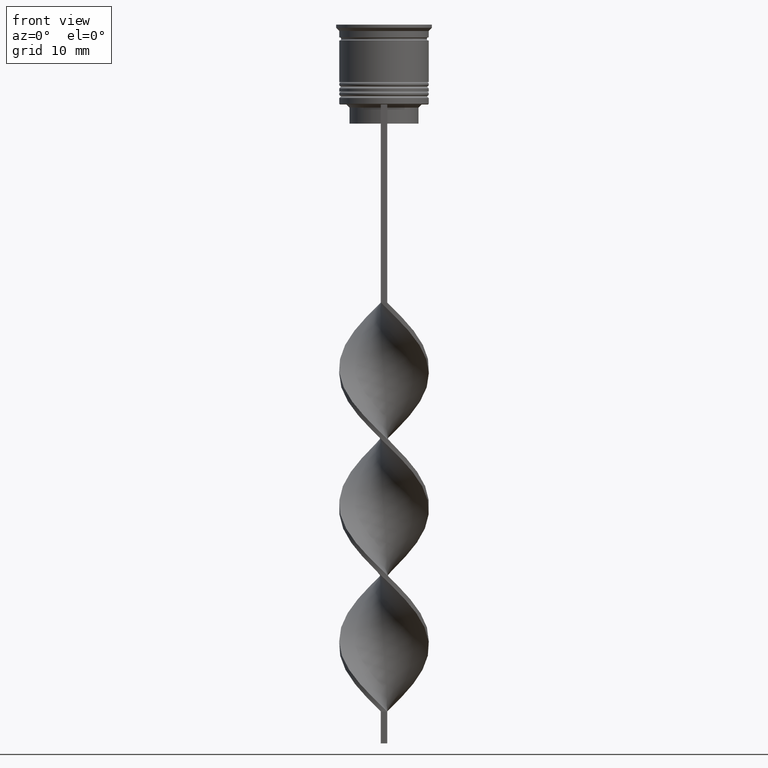
[diagram: clean part render]
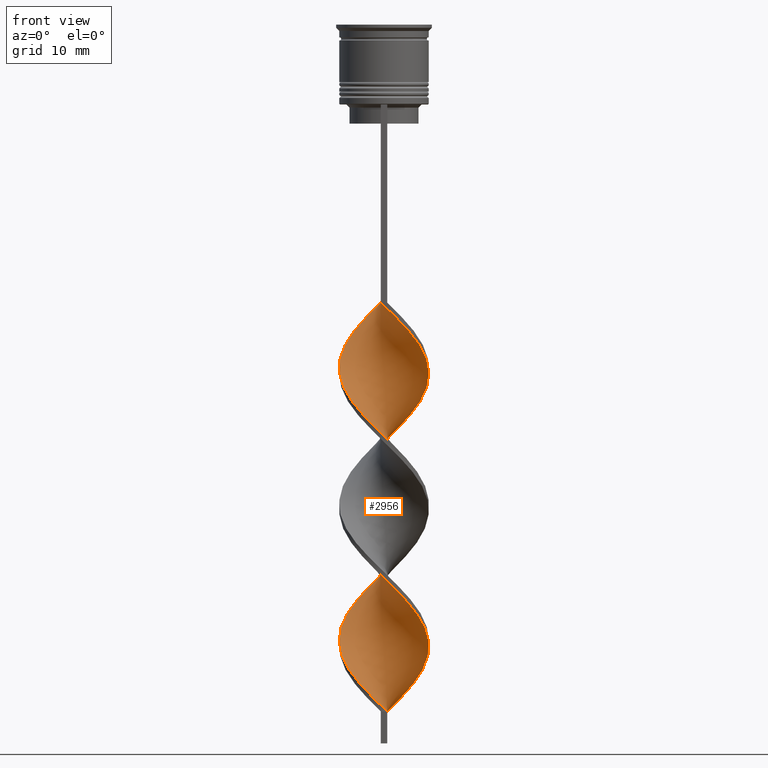
[diagram: same view with one face highlighted and labeled with its STEP entity id]
A machine part, front view. The second image highlights one B-rep face of the part: STEP entity #2956.
In plain terms, the highlighted face is a freeform B-spline surface patch.
Its self-contained STEP definition (entity closure, byte-faithful):
#6 = CARTESIAN_POINT ( 'NONE',  ( 5.476854687890014617, -4.387945160064918859, -92.73076923076922640 ) ) ;
#7 = CARTESIAN_POINT ( 'NONE',  ( 4.944061684284414504, -5.052955718088659509, -49.24358974358973740 ) ) ;
#9 = CARTESIAN_POINT ( 'NONE',  ( -6.009647691495620947, -3.722934602041179097, -57.44871794871794890 ) ) ;
#23 = CARTESIAN_POINT ( 'NONE',  ( -7.051412738059776864, 0.5036723384328427588, -75.49999999999998579 ) ) ;
#25 = CARTESIAN_POINT ( 'NONE',  ( 5.476854687890019946, 4.387945160064918859, -79.60256410256410220 ) ) ;
#40 = CARTESIAN_POINT ( 'NONE',  ( -6.367811255276639493, -2.949742330640456434, -99.29487179487178139 ) ) ;
#64 = CARTESIAN_POINT ( 'NONE',  ( 0.4999999999999996669, -2.333333333333336590, -107.5000000000000000 ) ) ;
#72 = CARTESIAN_POINT ( 'NONE',  ( -0.5000000000000000000, 7.000000000000002665, -86.16666666666667140 ) ) ;
#86 = CARTESIAN_POINT ( 'NONE',  ( -6.044919434621174759, 3.564961294171264949, -92.73076923076922640 ) ) ;
#101 = CARTESIAN_POINT ( 'NONE',  ( -4.944061684284419833, -5.052955718088660397, -59.08974358974358410 ) ) ;
#107 = CARTESIAN_POINT ( 'NONE',  ( -6.967048179568298139, -1.198476987909306679, -77.14102564102563520 ) ) ;
#118 = CARTESIAN_POINT ( 'NONE',  ( 6.722416142319174170, -2.014726087955045042, -73.03846153846153300 ) ) ;
#120 = CARTESIAN_POINT ( 'NONE',  ( 4.944061684284414504, -5.052955718088659509, -49.24358974358974450 ) ) ;
#132 = CARTESIAN_POINT ( 'NONE',  ( -5.612054764172303756, 4.298947400341753600, -49.24358974358974450 ) ) ;
#140 = EDGE_CURVE ( 'NONE', #2181, #3009, #2552, .T. ) ;
#152 = CARTESIAN_POINT ( 'NONE',  ( -0.5000000000000000000, 7.000000000000002665, -43.50000000000000000 ) ) ;
#158 = CARTESIAN_POINT ( 'NONE',  ( -6.888693778558713454, 1.340111198836291706, -74.67948717948718240 ) ) ;
#195 = CARTESIAN_POINT ( 'NONE',  ( 2.971407234896037863, 6.414580771288298067, -105.0384615384615188 ) ) ;
#198 = CARTESIAN_POINT ( 'NONE',  ( -2.029523600043935616, -6.771790116641158264, -62.37179487179486870 ) ) ;
#215 = CARTESIAN_POINT ( 'NONE',  ( 5.016113981771116670, 4.908013908077306198, -102.5769230769230660 ) ) ;
#217 = CARTESIAN_POINT ( 'NONE',  ( -2.810334191479773036, 6.430553765594351212, -68.11538461538459899 ) ) ;
#222 = CARTESIAN_POINT ( 'NONE',  ( -0.5000000000000000000, -6.999999999999997335, -86.16666666666667140 ) ) ;
#232 = CARTESIAN_POINT ( 'NONE',  ( -6.888693778558718783, -1.340111198836287487, -97.65384615384614619 ) ) ;
#235 = CARTESIAN_POINT ( 'NONE',  ( 6.967048179568297250, 1.198476987909309344, -98.47435897435896379 ) ) ;
#241 = CARTESIAN_POINT ( 'NONE',  ( 6.044919434621172094, 3.564961294171260509, -100.9358974358974308 ) ) ;
#252 = CARTESIAN_POINT ( 'NONE',  ( 4.267603233600013368, -5.571136566318104499, -91.08974358974359120 ) ) ;
#254 = CARTESIAN_POINT ( 'NONE',  ( 3.695790217132984168, 5.965830593550582428, -61.55128205128204399 ) ) ;
#257 = CARTESIAN_POINT ( 'NONE',  ( 7.051412738059776864, -0.5036723384328418707, -96.83333333333332860 ) ) ;
#270 = CARTESIAN_POINT ( 'NONE',  ( 5.016113981771116670, 4.908013908077306198, -59.91025641025640880 ) ) ;
#273 = CARTESIAN_POINT ( 'NONE',  ( -4.420173199369934025, 5.517080415812871230, -47.60256410256408799 ) ) ;
#297 = CARTESIAN_POINT ( 'NONE',  ( 0.5000000000000003331, 2.333333333333331261, -107.5000000000000000 ) ) ;
#305 = CARTESIAN_POINT ( 'NONE',  ( -4.420173199369932249, -5.517080415812865901, -82.06410256410255499 ) ) ;
#308 = CARTESIAN_POINT ( 'NONE',  ( 3.591144782915620226, 6.089317414547552154, -82.06410256410255499 ) ) ;
#326 = CARTESIAN_POINT ( 'NONE',  ( 0.4999999999999991673, -7.000000000000002665, -107.5000000000000000 ) ) ;
#327 = EDGE_CURVE ( 'NONE', #2102, #3152, #2929, .T. ) ;
#342 = CARTESIAN_POINT ( 'NONE',  ( -0.3499538825558272115, -7.060710991611133025, -106.6794871794871682 ) ) ;
#367 = CARTESIAN_POINT ( 'NONE',  ( 7.009230458814042386, -0.3474023247382383994, -74.67948717948718240 ) ) ;
#369 = CARTESIAN_POINT ( 'NONE',  ( -7.009230458814037057, -0.3474023247382289625, -76.32051282051281760 ) ) ;
#376 = CARTESIAN_POINT ( 'NONE',  ( -0.5000000000000000000, -6.999999999999997335, -43.50000000000000000 ) ) ;
#387 = CARTESIAN_POINT ( 'NONE',  ( 6.888693778558720560, 1.340111198836283490, -76.32051282051281760 ) ) ;
#392 = CARTESIAN_POINT ( 'NONE',  ( 3.591144782915614453, -6.089317414547549490, -47.60256410256409509 ) ) ;
#409 = CARTESIAN_POINT ( 'NONE',  ( -2.029523600043928955, 6.771790116641154711, -67.29487179487178139 ) ) ;
#423 = CARTESIAN_POINT ( 'NONE',  ( -2.160680558725931011, 6.676934889838587850, -45.14102564102563520 ) ) ;
#426 = CARTESIAN_POINT ( 'NONE',  ( -5.612054764172303756, -4.298947400341743830, -80.42307692307691980 ) ) ;
#432 = DIRECTION ( 'NONE',  ( 0.000000000000000000, 1.000000000000000000, 0.000000000000000000 ) ) ;
#442 = CARTESIAN_POINT ( 'NONE',  ( 2.029523600043936504, 6.771790116641158264, -83.70512820512820440 ) ) ;
#448 = CARTESIAN_POINT ( 'NONE',  ( -2.160680558725935896, -6.676934889838579856, -84.52564102564103621 ) ) ;
#466 = CARTESIAN_POINT ( 'NONE',  ( -6.725974819057657150, -2.176550059239735546, -98.47435897435896379 ) ) ;
#490 = CARTESIAN_POINT ( 'NONE',  ( 6.725974819057650933, -2.176550059239735546, -52.52564102564103621 ) ) ;
#492 = CARTESIAN_POINT ( 'NONE',  ( -7.009230458814042386, 0.3474023247382359014, -53.34615384615383959 ) ) ;
#506 = CARTESIAN_POINT ( 'NONE',  ( 6.009647691495615618, -3.722934602041177765, -93.55128205128204399 ) ) ;
#510 = CARTESIAN_POINT ( 'NONE',  ( 2.971407234896038307, 6.414580771288298067, -105.0384615384615330 ) ) ;
#522 = CARTESIAN_POINT ( 'NONE',  ( -7.009230458814042386, 0.3474023247382359014, -96.01282051282051100 ) ) ;
#526 = CARTESIAN_POINT ( 'NONE',  ( 4.267603233600013368, -5.571136566318104499, -48.42307692307691269 ) ) ;
#530 = CARTESIAN_POINT ( 'NONE',  ( -0.5000000000000000000, 7.000000000000002665, -43.50000000000000000 ) ) ;
#540 = CARTESIAN_POINT ( 'NONE',  ( -4.944061684284419833, -5.052955718088660397, -101.7564102564102484 ) ) ;
#549 = CARTESIAN_POINT ( 'NONE',  ( -6.888693778558718783, -1.340111198836287487, -54.98717948717948190 ) ) ;
#562 = CARTESIAN_POINT ( 'NONE',  ( -6.009647691495614730, 3.722934602041180430, -72.21794871794871540 ) ) ;
#572 = CARTESIAN_POINT ( 'NONE',  ( 0.4999999999999991673, -7.000000000000002665, -107.5000000000000000 ) ) ;
#582 = CARTESIAN_POINT ( 'NONE',  ( -6.888693778558713454, 1.340111198836291706, -74.67948717948718240 ) ) ;
#583 = CARTESIAN_POINT ( 'NONE',  ( 6.009647691495623612, 3.722934602041175989, -78.78205128205127039 ) ) ;
#590 = CARTESIAN_POINT ( 'NONE',  ( 0.5000000000000008882, 6.999999999999997335, -107.5000000000000000 ) ) ;
#597 = CARTESIAN_POINT ( 'NONE',  ( -4.267603233600019585, -5.571136566318106276, -102.5769230769230660 ) ) ;
#614 = CARTESIAN_POINT ( 'NONE',  ( -4.420173199369934025, 5.517080415812871230, -90.26923076923075939 ) ) ;
#630 = CARTESIAN_POINT ( 'NONE',  ( 7.051412738059782193, 0.5036723384328400943, -75.49999999999998579 ) ) ;
#645 = CARTESIAN_POINT ( 'NONE',  ( -6.009647691495613842, 3.722934602041180430, -72.21794871794871540 ) ) ;
#658 = CARTESIAN_POINT ( 'NONE',  ( -0.3499538825558272115, -7.060710991611133025, -64.01282051282051100 ) ) ;
#678 = CARTESIAN_POINT ( 'NONE',  ( 3.591144782915620226, 6.089317414547553042, -82.06410256410255499 ) ) ;
#683 = CARTESIAN_POINT ( 'NONE',  ( 2.971407234896037863, 6.414580771288298067, -62.37179487179486870 ) ) ;
#700 = CARTESIAN_POINT ( 'NONE',  ( 2.971407234896035199, -6.414580771288305172, -67.29487179487178139 ) ) ;
#704 = CARTESIAN_POINT ( 'NONE',  ( -7.051412738059777752, 0.5036723384328427588, -75.50000000000000000 ) ) ;
#714 = CARTESIAN_POINT ( 'NONE',  ( -1.349953882555824158, 6.939289008388872304, -86.98717948717948900 ) ) ;
#718 = CARTESIAN_POINT ( 'NONE',  ( 6.009647691495615618, -3.722934602041177765, -50.88461538461537970 ) ) ;
#758 = CARTESIAN_POINT ( 'NONE',  ( 6.725974819057650933, -2.176550059239735102, -95.19230769230769340 ) ) ;
#762 = CARTESIAN_POINT ( 'NONE',  ( 1.349953882555822382, -6.939289008388872304, -65.65384615384614619 ) ) ;
#778 = CARTESIAN_POINT ( 'NONE',  ( -6.044919434621174759, 3.564961294171264949, -50.06410256410256210 ) ) ;
#788 = CARTESIAN_POINT ( 'NONE',  ( -6.009647691495620947, -3.722934602041179097, -100.1153846153846132 ) ) ;
#793 = CARTESIAN_POINT ( 'NONE',  ( 3.591144782915614453, -6.089317414547549490, -90.26923076923077360 ) ) ;
#794 = EDGE_LOOP ( 'NONE', ( #3116, #840, #2944, #2949 ) ) ;
#795 = CARTESIAN_POINT ( 'NONE',  ( 6.888693778558713454, -1.340111198836289264, -53.34615384615383959 ) ) ;
#799 = CARTESIAN_POINT ( 'NONE',  ( 6.967048179568296362, 1.198476987909309566, -98.47435897435896379 ) ) ;
#821 = CARTESIAN_POINT ( 'NONE',  ( 5.612054764172301979, 4.298947400341747382, -101.7564102564102484 ) ) ;
#833 = CARTESIAN_POINT ( 'NONE',  ( -4.267603233600012480, 5.571136566318105388, -69.75641025641024839 ) ) ;
#836 = CARTESIAN_POINT ( 'NONE',  ( 4.267603233600013368, -5.571136566318104499, -91.08974358974359120 ) ) ;
#840 = ORIENTED_EDGE ( 'NONE', *, *, #3386, .T. ) ;
#851 = CARTESIAN_POINT ( 'NONE',  ( -6.044919434621172094, -3.564961294171259620, -79.60256410256410220 ) ) ;
#856 = CARTESIAN_POINT ( 'NONE',  ( 6.722416142319174170, -2.014726087955045042, -73.03846153846153300 ) ) ;
#874 = CARTESIAN_POINT ( 'NONE',  ( -2.029523600043935616, -6.771790116641158264, -105.0384615384615330 ) ) ;
#889 =( BOUNDED_CURVE ( )  B_SPLINE_CURVE ( 2, ( #3456, #941, #2101, #1295, #2890, #392, #1543, #120, #3218, #718, #1511, #1567, #2620, #2602, #1237, #958, #2078, #1840, #1254, #2943, #983, #3180, #2871, #683, #1824, #1807, #2910, #3205, #1014, #409, #1527, #2407, #2636, #2366, #3144, #645, #3479, #1769, #158, #704, #369, #107, #1220, #2924, #2329, #426, #2656, #1276, #2388, #3498, #448, #1629, #1332, #2967, #2735, #2157, #2767, #793, #252, #2984, #6, #506, #2448, #758, #2461, #2216, #2136, #235, #3534, #1389, #1351, #3238, #215, #1585, #3575, #195, #1917, #3557, #1077 ),
 .UNSPECIFIED., .F., .T. ) 
 B_SPLINE_CURVE_WITH_KNOTS ( ( 3, 2, 2, 2, 2, 2, 2, 2, 2, 2, 2, 2, 2, 2, 2, 2, 2, 2, 2, 2, 2, 2, 2, 2, 2, 2, 2, 2, 2, 2, 2, 2, 2, 2, 2, 2, 2, 2, 2, 3 ),
 ( 0.000000000000000000, 0.01923076923076923184, 0.03846153846153846367, 0.05769230769230768857, 0.07692307692307692735, 0.09615384615384615918, 0.1153846153846153771, 0.1346153846153846090, 0.1538461538461538547, 0.1730769230769230449, 0.1923076923076923184, 0.2115384615384615363, 0.2307692307692307543, 0.2500000000000000000, 0.2692307692307692180, 0.2884615384615384359, 0.3076923076923077094, 0.3269230769230769273, 0.3461538461538460898, 0.3653846153846153633, 0.3846153846153846367, 0.4038461538461539102, 0.4230769230769230727, 0.4423076923076922906, 0.4615384615384615086, 0.4807692307692307820, 0.5000000000000000000, 0.5192307692307692735, 0.5384615384615384359, 0.5576923076923077094, 0.5769230769230768718, 0.5961538461538461453, 0.6153846153846154188, 0.6346153846153845812, 0.6538461538461538547, 0.6730769230769230171, 0.6923076923076921796, 0.7115384615384615641, 0.7307692307692307265, 0.7500000000000000000 ),
 .UNSPECIFIED. ) 
 CURVE ( )  GEOMETRIC_REPRESENTATION_ITEM ( )  RATIONAL_B_SPLINE_CURVE ( ( 1.000000000000000000, 0.9927088740980539727, 1.000000000000000000, 0.9927088740980539727, 1.000000000000000000, 0.9927088740980539727, 1.000000000000000000, 0.9927088740980539727, 1.000000000000000000, 0.9927088740980539727, 1.000000000000000000, 0.9927088740980539727, 1.000000000000000000, 0.9927088740980539727, 1.000000000000000000, 0.9927088740980539727, 1.000000000000000000, 0.9927088740980539727, 1.000000000000000000, 0.9927088740980539727, 1.000000000000000000, 0.9927088740980539727, 1.000000000000000000, 0.9927088740980539727, 1.000000000000000000, 0.9927088740980539727, 1.000000000000000000, 0.9927088740980539727, 1.000000000000000000, 0.9927088740980539727, 1.000000000000000000, 0.9927088740980539727, 1.000000000000000000, 0.9927088740980539727, 1.000000000000000000, 0.9927088740980539727, 1.000000000000000000, 0.9927088740980539727, 1.000000000000000000, 0.9927088740980539727, 1.000000000000000000, 0.9927088740980539727, 1.000000000000000000, 0.9927088740980539727, 1.000000000000000000, 0.9927088740980539727, 1.000000000000000000, 0.9927088740980539727, 1.000000000000000000, 0.9927088740980539727, 1.000000000000000000, 0.9927088740980539727, 1.000000000000000000, 0.9927088740980539727, 1.000000000000000000, 0.9927088740980539727, 1.000000000000000000, 0.9927088740980539727, 1.000000000000000000, 0.9927088740980539727, 1.000000000000000000, 0.9927088740980539727, 1.000000000000000000, 0.9927088740980539727, 1.000000000000000000, 0.9927088740980539727, 1.000000000000000000, 0.9927088740980539727, 1.000000000000000000, 0.9927088740980539727, 1.000000000000000000, 0.9927088740980539727, 1.000000000000000000, 0.9927088740980539727, 1.000000000000000000, 0.9927088740980539727, 1.000000000000000000, 0.9927088740980539727, 1.000000000000000000 ) ) 
 REPRESENTATION_ITEM ( '' )  );
#893 = CARTESIAN_POINT ( 'NONE',  ( -7.051412738059782193, -0.5036723384328409825, -96.83333333333332860 ) ) ;
#924 = CARTESIAN_POINT ( 'NONE',  ( 6.477784105070043985, -2.830975188000779408, -72.21794871794871540 ) ) ;
#941 = CARTESIAN_POINT ( 'NONE',  ( 0.3499538825558234922, -7.060710991611127696, -44.32051282051282470 ) ) ;
#954 = CARTESIAN_POINT ( 'NONE',  ( 4.420173199369933137, -5.517080415812873007, -68.93589743589743080 ) ) ;
#958 = CARTESIAN_POINT ( 'NONE',  ( 6.967048179568297250, 1.198476987909309344, -55.80769230769230660 ) ) ;
#979 = CARTESIAN_POINT ( 'NONE',  ( -3.591144782915619338, -6.089317414547553042, -60.73076923076922640 ) ) ;
#983 = CARTESIAN_POINT ( 'NONE',  ( 5.016113981771116670, 4.908013908077306198, -59.91025641025640880 ) ) ;
#996 = CARTESIAN_POINT ( 'NONE',  ( 2.810334191479780586, 6.430553765594353877, -82.88461538461537259 ) ) ;
#1009 = CARTESIAN_POINT ( 'NONE',  ( -2.029523600043935616, -6.771790116641158264, -105.0384615384615188 ) ) ;
#1014 = CARTESIAN_POINT ( 'NONE',  ( -1.189738741299875224, 6.916250554126141203, -66.47435897435896379 ) ) ;
#1039 = CARTESIAN_POINT ( 'NONE',  ( -3.591144782915613565, 6.089317414547550378, -68.93589743589743080 ) ) ;
#1043 = CARTESIAN_POINT ( 'NONE',  ( 6.367811255276632387, -2.949742330640456878, -94.37179487179486159 ) ) ;
#1054 = CARTESIAN_POINT ( 'NONE',  ( -4.420173199369934025, 5.517080415812872118, -90.26923076923077360 ) ) ;
#1064 = CARTESIAN_POINT ( 'NONE',  ( 5.612054764172302868, -4.298947400341755376, -70.57692307692306599 ) ) ;
#1074 = CARTESIAN_POINT ( 'NONE',  ( -6.722416142319174170, 2.014726087955044598, -94.37179487179486159 ) ) ;
#1077 = CARTESIAN_POINT ( 'NONE',  ( 0.5000000000000008882, 6.999999999999997335, -107.5000000000000000 ) ) ;
#1079 = CARTESIAN_POINT ( 'NONE',  ( 6.967048179568296362, 1.198476987909309566, -55.80769230769230660 ) ) ;
#1082 = CARTESIAN_POINT ( 'NONE',  ( 2.810334191479773480, -6.430553765594351212, -89.44871794871794179 ) ) ;
#1103 = CARTESIAN_POINT ( 'NONE',  ( -6.725974819057657150, -2.176550059239735990, -55.80769230769230660 ) ) ;
#1125 = CARTESIAN_POINT ( 'NONE',  ( -4.944061684284419833, -5.052955718088660397, -59.08974358974359120 ) ) ;
#1137 = CARTESIAN_POINT ( 'NONE',  ( -5.612054764172303756, -4.298947400341743830, -80.42307692307691980 ) ) ;
#1139 = CARTESIAN_POINT ( 'NONE',  ( -2.160680558725931011, 6.676934889838587850, -87.80769230769230660 ) ) ;
#1156 = CARTESIAN_POINT ( 'NONE',  ( 7.009230458814042386, -0.3474023247382383994, -74.67948717948718240 ) ) ;
#1173 = CARTESIAN_POINT ( 'NONE',  ( 2.029523600043936060, 6.771790116641158264, -83.70512820512820440 ) ) ;
#1188 = CARTESIAN_POINT ( 'NONE',  ( -3.695790217132985944, 5.965830593550586869, -89.44871794871794179 ) ) ;
#1201 = CARTESIAN_POINT ( 'NONE',  ( -2.971407234896037863, 6.414580771288304284, -45.96153846153845990 ) ) ;
#1217 = CARTESIAN_POINT ( 'NONE',  ( -2.810334191479776589, -6.430553765594355653, -61.55128205128204399 ) ) ;
#1220 = CARTESIAN_POINT ( 'NONE',  ( -6.722416142319169730, -2.014726087955041045, -77.96153846153845279 ) ) ;
#1234 = CARTESIAN_POINT ( 'NONE',  ( 1.189738741299885438, 6.916250554126144756, -84.52564102564103621 ) ) ;
#1237 = CARTESIAN_POINT ( 'NONE',  ( 7.009230458814037057, 0.3474023247382328483, -54.98717948717948190 ) ) ;
#1252 = CARTESIAN_POINT ( 'NONE',  ( -6.477784105070046650, 2.830975188000775411, -50.88461538461537970 ) ) ;
#1254 = CARTESIAN_POINT ( 'NONE',  ( 6.044919434621172094, 3.564961294171260509, -58.26923076923076650 ) ) ;
#1269 = CARTESIAN_POINT ( 'NONE',  ( -6.888693778558718783, -1.340111198836287487, -54.98717948717948190 ) ) ;
#1276 = CARTESIAN_POINT ( 'NONE',  ( -4.420173199369932249, -5.517080415812866789, -82.06410256410255499 ) ) ;
#1295 = CARTESIAN_POINT ( 'NONE',  ( 2.029523600043931175, -6.771790116641153823, -45.96153846153845990 ) ) ;
#1311 = CARTESIAN_POINT ( 'NONE',  ( -5.612054764172303756, 4.298947400341753600, -91.91025641025643722 ) ) ;
#1318 = CARTESIAN_POINT ( 'NONE',  ( -0.3499538825558272115, -7.060710991611133025, -64.01282051282051100 ) ) ;
#1323 = VECTOR ( 'NONE', #432, 1000.000000000000000 ) ;
#1328 = CARTESIAN_POINT ( 'NONE',  ( -6.477784105070046650, 2.830975188000775411, -93.55128205128204399 ) ) ;
#1332 = CARTESIAN_POINT ( 'NONE',  ( -0.5000000000000000000, -6.999999999999997335, -86.16666666666667140 ) ) ;
#1339 = CARTESIAN_POINT ( 'NONE',  ( 3.695790217132985500, -5.965830593550586869, -68.11538461538459899 ) ) ;
#1348 = CARTESIAN_POINT ( 'NONE',  ( -6.367811255276639493, -2.949742330640456434, -99.29487179487178139 ) ) ;
#1351 = CARTESIAN_POINT ( 'NONE',  ( 6.044919434621172094, 3.564961294171260509, -100.9358974358974308 ) ) ;
#1357 = CARTESIAN_POINT ( 'NONE',  ( -3.591144782915619338, -6.089317414547552154, -60.73076923076922640 ) ) ;
#1372 = CARTESIAN_POINT ( 'NONE',  ( 4.420173199369931361, 5.517080415812865901, -103.3974358974358694 ) ) ;
#1389 = CARTESIAN_POINT ( 'NONE',  ( 6.477784105070041321, 2.830975188000771858, -100.1153846153846132 ) ) ;
#1391 = CARTESIAN_POINT ( 'NONE',  ( 3.591144782915614453, -6.089317414547549490, -47.60256410256408799 ) ) ;
#1395 = CARTESIAN_POINT ( 'NONE',  ( 5.016113981771116670, 4.908013908077306198, -102.5769230769230660 ) ) ;
#1413 = CARTESIAN_POINT ( 'NONE',  ( -4.944061684284419833, -5.052955718088660397, -101.7564102564102484 ) ) ;
#1428 = CARTESIAN_POINT ( 'NONE',  ( -5.016113981771117558, 4.908013908077312415, -91.08974358974359120 ) ) ;
#1441 = CARTESIAN_POINT ( 'NONE',  ( -2.971407234896037863, 6.414580771288304284, -88.62820512820513841 ) ) ;
#1459 = CARTESIAN_POINT ( 'NONE',  ( -6.967048179568302579, 1.198476987909311342, -95.19230769230769340 ) ) ;
#1474 = CARTESIAN_POINT ( 'NONE',  ( 0.4999999999999991673, -7.000000000000002665, -107.5000000000000000 ) ) ;
#1485 = CARTESIAN_POINT ( 'NONE',  ( -6.009647691495620947, -3.722934602041179097, -57.44871794871794890 ) ) ;
#1507 = CARTESIAN_POINT ( 'NONE',  ( 5.476854687890019946, 4.387945160064918859, -79.60256410256410220 ) ) ;
#1511 = CARTESIAN_POINT ( 'NONE',  ( 6.367811255276632387, -2.949742330640456878, -51.70512820512820440 ) ) ;
#1527 = CARTESIAN_POINT ( 'NONE',  ( -2.810334191479773036, 6.430553765594351212, -68.11538461538459899 ) ) ;
#1540 = CARTESIAN_POINT ( 'NONE',  ( -7.009230458814042386, 0.3474023247382359014, -53.34615384615383959 ) ) ;
#1543 = CARTESIAN_POINT ( 'NONE',  ( 4.267603233600013368, -5.571136566318104499, -48.42307692307691269 ) ) ;
#1562 = CARTESIAN_POINT ( 'NONE',  ( -0.5000000000000000000, -6.999999999999997335, -43.50000000000000000 ) ) ;
#1567 = CARTESIAN_POINT ( 'NONE',  ( 6.725974819057650933, -2.176550059239735102, -52.52564102564102910 ) ) ;
#1585 = CARTESIAN_POINT ( 'NONE',  ( 4.420173199369931361, 5.517080415812866789, -103.3974358974358836 ) ) ;
#1589 = CARTESIAN_POINT ( 'NONE',  ( 5.476854687890014617, -4.387945160064918859, -92.73076923076922640 ) ) ;
#1611 = CARTESIAN_POINT ( 'NONE',  ( 2.160680558725928790, -6.676934889838588738, -66.47435897435896379 ) ) ;
#1629 = CARTESIAN_POINT ( 'NONE',  ( -1.349953882555827489, -6.939289008388866975, -85.34615384615385381 ) ) ;
#1636 = CARTESIAN_POINT ( 'NONE',  ( -7.051412738059782193, -0.5036723384328409825, -54.16666666666665719 ) ) ;
#1652 = CARTESIAN_POINT ( 'NONE',  ( 2.160680558725932343, 6.676934889838581633, -63.19230769230768630 ) ) ;
#1655 = CARTESIAN_POINT ( 'NONE',  ( -1.349953882555824158, 6.939289008388872304, -44.32051282051282470 ) ) ;
#1668 = CARTESIAN_POINT ( 'NONE',  ( 7.051412738059776864, -0.5036723384328418707, -54.16666666666665719 ) ) ;
#1670 = CARTESIAN_POINT ( 'NONE',  ( 1.189738741299877445, -6.916250554126140315, -87.80769230769230660 ) ) ;
#1685 = CARTESIAN_POINT ( 'NONE',  ( 5.612054764172301979, 4.298947400341747382, -59.08974358974359120 ) ) ;
#1687 = CARTESIAN_POINT ( 'NONE',  ( -2.810334191479776589, -6.430553765594355653, -104.2179487179487012 ) ) ;
#1705 = CARTESIAN_POINT ( 'NONE',  ( -6.477784105070042209, -2.830975188000768306, -78.78205128205127039 ) ) ;
#1707 = CARTESIAN_POINT ( 'NONE',  ( 4.944061684284423386, 5.052955718088656845, -80.42307692307691980 ) ) ;
#1755 = CARTESIAN_POINT ( 'NONE',  ( 1.189738741299885438, 6.916250554126144756, -84.52564102564103621 ) ) ;
#1767 = CARTESIAN_POINT ( 'NONE',  ( -5.016113981771117558, 4.908013908077312415, -48.42307692307691269 ) ) ;
#1769 = CARTESIAN_POINT ( 'NONE',  ( -6.725974819057651821, 2.176550059239734658, -73.85897435897436480 ) ) ;
#1782 = CARTESIAN_POINT ( 'NONE',  ( -6.367811255276639493, -2.949742330640456434, -56.62820512820513130 ) ) ;
#1804 = CARTESIAN_POINT ( 'NONE',  ( -3.695790217132985944, 5.965830593550586869, -46.78205128205127750 ) ) ;
#1807 = CARTESIAN_POINT ( 'NONE',  ( 1.349953882555826601, 6.939289008388866975, -64.01282051282051100 ) ) ;
#1820 = CARTESIAN_POINT ( 'NONE',  ( 5.612054764172302868, -4.298947400341755376, -70.57692307692306599 ) ) ;
#1824 = CARTESIAN_POINT ( 'NONE',  ( 2.160680558725932343, 6.676934889838581633, -63.19230769230768630 ) ) ;
#1837 = CARTESIAN_POINT ( 'NONE',  ( 0.4999999999999991673, -7.000000000000002665, -64.83333333333332860 ) ) ;
#1840 = CARTESIAN_POINT ( 'NONE',  ( 6.477784105070041321, 2.830975188000771858, -57.44871794871794890 ) ) ;
#1857 = CARTESIAN_POINT ( 'NONE',  ( -4.267603233600019585, -5.571136566318106276, -102.5769230769230660 ) ) ;
#1878 = CARTESIAN_POINT ( 'NONE',  ( 6.722416142319168841, 2.014726087955040157, -56.62820512820513130 ) ) ;
#1881 = CARTESIAN_POINT ( 'NONE',  ( -6.967048179568302579, 1.198476987909311342, -52.52564102564103621 ) ) ;
#1897 = CARTESIAN_POINT ( 'NONE',  ( 1.189738741299877445, -6.916250554126140315, -45.14102564102563520 ) ) ;
#1899 = CARTESIAN_POINT ( 'NONE',  ( -1.349953882555827489, -6.939289008388866975, -85.34615384615383959 ) ) ;
#1917 = CARTESIAN_POINT ( 'NONE',  ( 2.160680558725932343, 6.676934889838581633, -105.8589743589743506 ) ) ;
#1920 = CARTESIAN_POINT ( 'NONE',  ( 4.420173199369931361, 5.517080415812865901, -60.73076923076922640 ) ) ;
#1923 = CARTESIAN_POINT ( 'NONE',  ( 0.3499538825558234922, -7.060710991611127696, -86.98717948717948900 ) ) ;
#1941 = CARTESIAN_POINT ( 'NONE',  ( -5.016113981771117558, 4.908013908077312415, -48.42307692307691269 ) ) ;
#1955 = CARTESIAN_POINT ( 'NONE',  ( 6.477784105070041321, 2.830975188000771858, -57.44871794871794890 ) ) ;
#1959 = CARTESIAN_POINT ( 'NONE',  ( -3.695790217132985944, 5.965830593550586869, -46.78205128205127750 ) ) ;
#1975 = CARTESIAN_POINT ( 'NONE',  ( -7.009230458814037057, -0.3474023247382289625, -76.32051282051281760 ) ) ;
#1977 = CARTESIAN_POINT ( 'NONE',  ( -6.888693778558718783, -1.340111198836287487, -97.65384615384614619 ) ) ;
#2010 = CARTESIAN_POINT ( 'NONE',  ( 0.3499538825558280997, 7.060710991611133025, -85.34615384615383959 ) ) ;
#2028 = CARTESIAN_POINT ( 'NONE',  ( 2.810334191479780586, 6.430553765594353877, -82.88461538461537259 ) ) ;
#2041 = CARTESIAN_POINT ( 'NONE',  ( -7.051412738059782193, -0.5036723384328409825, -54.16666666666666430 ) ) ;
#2056 = CARTESIAN_POINT ( 'NONE',  ( 5.016113981771116670, -4.908013908077313303, -69.75641025641024839 ) ) ;
#2073 = CARTESIAN_POINT ( 'NONE',  ( -2.971407234896037863, 6.414580771288304284, -88.62820512820512420 ) ) ;
#2078 = CARTESIAN_POINT ( 'NONE',  ( 6.722416142319168841, 2.014726087955040157, -56.62820512820513130 ) ) ;
#2098 = CARTESIAN_POINT ( 'NONE',  ( -4.420173199369934025, 5.517080415812872118, -47.60256410256409509 ) ) ;
#2101 = CARTESIAN_POINT ( 'NONE',  ( 1.189738741299877445, -6.916250554126140315, -45.14102564102563520 ) ) ;
#2102 = VERTEX_POINT ( 'NONE', #1562 ) ;
#2117 = CARTESIAN_POINT ( 'NONE',  ( -1.189738741299881442, -6.916250554126144756, -63.19230769230768630 ) ) ;
#2132 = CARTESIAN_POINT ( 'NONE',  ( -2.810334191479776589, -6.430553765594355653, -104.2179487179487012 ) ) ;
#2136 = CARTESIAN_POINT ( 'NONE',  ( 7.009230458814037057, 0.3474023247382328483, -97.65384615384614619 ) ) ;
#2157 = CARTESIAN_POINT ( 'NONE',  ( 2.029523600043931175, -6.771790116641153823, -88.62820512820512420 ) ) ;
#2159 = CARTESIAN_POINT ( 'NONE',  ( -4.944061684284411839, 5.052955718088659509, -70.57692307692306599 ) ) ;
#2163 = CARTESIAN_POINT ( 'NONE',  ( -2.160680558725931011, 6.676934889838587850, -45.14102564102563520 ) ) ;
#2174 =( BOUNDED_CURVE ( )  B_SPLINE_CURVE ( 2, ( #152, #2886, #423, #1201, #1804, #2098, #1767, #132, #2309, #1252, #3473, #3174, #1540, #2041, #1269, #2652, #1782, #1485, #3417, #101, #2359, #979, #1217, #3142, #2117, #658, #1837, #3202, #3435, #700, #2325, #954, #2056, #1820, #2937, #924, #118, #2868, #367, #3153, #387, #2923, #2385, #2907, #1507, #2617, #3495, #678, #996, #442, #1234, #3215, #2342, #714, #3453, #2073, #2211, #1054, #2981, #1311, #2997, #1328, #1074, #2709, #522, #3512, #232, #466, #1348, #788, #3529, #540, #1857, #3317, #2132, #1009, #2404, #2444, #2191 ),
 .UNSPECIFIED., .F., .T. ) 
 B_SPLINE_CURVE_WITH_KNOTS ( ( 3, 2, 2, 2, 2, 2, 2, 2, 2, 2, 2, 2, 2, 2, 2, 2, 2, 2, 2, 2, 2, 2, 2, 2, 2, 2, 2, 2, 2, 2, 2, 2, 2, 2, 2, 2, 2, 2, 2, 3 ),
 ( 0.000000000000000000, 0.01923076923076923184, 0.03846153846153846367, 0.05769230769230768857, 0.07692307692307692735, 0.09615384615384615918, 0.1153846153846153771, 0.1346153846153846090, 0.1538461538461538547, 0.1730769230769230449, 0.1923076923076923184, 0.2115384615384615363, 0.2307692307692307543, 0.2500000000000000000, 0.2692307692307692180, 0.2884615384615384359, 0.3076923076923077094, 0.3269230769230769273, 0.3461538461538460898, 0.3653846153846153633, 0.3846153846153846367, 0.4038461538461539102, 0.4230769230769230727, 0.4423076923076922906, 0.4615384615384615086, 0.4807692307692307820, 0.5000000000000000000, 0.5192307692307692735, 0.5384615384615384359, 0.5576923076923077094, 0.5769230769230768718, 0.5961538461538461453, 0.6153846153846154188, 0.6346153846153845812, 0.6538461538461538547, 0.6730769230769230171, 0.6923076923076921796, 0.7115384615384615641, 0.7307692307692307265, 0.7500000000000000000 ),
 .UNSPECIFIED. ) 
 CURVE ( )  GEOMETRIC_REPRESENTATION_ITEM ( )  RATIONAL_B_SPLINE_CURVE ( ( 1.000000000000000000, 0.9927088740980539727, 1.000000000000000000, 0.9927088740980539727, 1.000000000000000000, 0.9927088740980539727, 1.000000000000000000, 0.9927088740980539727, 1.000000000000000000, 0.9927088740980539727, 1.000000000000000000, 0.9927088740980539727, 1.000000000000000000, 0.9927088740980539727, 1.000000000000000000, 0.9927088740980539727, 1.000000000000000000, 0.9927088740980539727, 1.000000000000000000, 0.9927088740980539727, 1.000000000000000000, 0.9927088740980539727, 1.000000000000000000, 0.9927088740980539727, 1.000000000000000000, 0.9927088740980539727, 1.000000000000000000, 0.9927088740980539727, 1.000000000000000000, 0.9927088740980539727, 1.000000000000000000, 0.9927088740980539727, 1.000000000000000000, 0.9927088740980539727, 1.000000000000000000, 0.9927088740980539727, 1.000000000000000000, 0.9927088740980539727, 1.000000000000000000, 0.9927088740980539727, 1.000000000000000000, 0.9927088740980539727, 1.000000000000000000, 0.9927088740980539727, 1.000000000000000000, 0.9927088740980539727, 1.000000000000000000, 0.9927088740980539727, 1.000000000000000000, 0.9927088740980539727, 1.000000000000000000, 0.9927088740980539727, 1.000000000000000000, 0.9927088740980539727, 1.000000000000000000, 0.9927088740980539727, 1.000000000000000000, 0.9927088740980539727, 1.000000000000000000, 0.9927088740980539727, 1.000000000000000000, 0.9927088740980539727, 1.000000000000000000, 0.9927088740980539727, 1.000000000000000000, 0.9927088740980539727, 1.000000000000000000, 0.9927088740980539727, 1.000000000000000000, 0.9927088740980539727, 1.000000000000000000, 0.9927088740980539727, 1.000000000000000000, 0.9927088740980539727, 1.000000000000000000, 0.9927088740980539727, 1.000000000000000000, 0.9927088740980539727, 1.000000000000000000 ) ) 
 REPRESENTATION_ITEM ( '' )  );
#2177 = FACE_OUTER_BOUND ( 'NONE', #794, .T. ) ;
#2180 = CARTESIAN_POINT ( 'NONE',  ( 6.044919434621174759, -3.564961294171264949, -71.39743589743588359 ) ) ;
#2181 = VERTEX_POINT ( 'NONE', #2278 ) ;
#2191 = CARTESIAN_POINT ( 'NONE',  ( 0.4999999999999991673, -7.000000000000002665, -107.5000000000000000 ) ) ;
#2194 = CARTESIAN_POINT ( 'NONE',  ( 6.044919434621172094, 3.564961294171260509, -58.26923076923076650 ) ) ;
#2198 = CARTESIAN_POINT ( 'NONE',  ( 6.725974819057650933, -2.176550059239735546, -95.19230769230769340 ) ) ;
#2211 = CARTESIAN_POINT ( 'NONE',  ( -3.695790217132985944, 5.965830593550586869, -89.44871794871794179 ) ) ;
#2216 = CARTESIAN_POINT ( 'NONE',  ( 7.051412738059777752, -0.5036723384328418707, -96.83333333333332860 ) ) ;
#2219 = CARTESIAN_POINT ( 'NONE',  ( 6.367811255276632387, -2.949742330640456878, -51.70512820512820440 ) ) ;
#2220 = CARTESIAN_POINT ( 'NONE',  ( 1.349953882555826601, 6.939289008388866975, -106.6794871794871682 ) ) ;
#2236 = CARTESIAN_POINT ( 'NONE',  ( 0.5000000000000008882, 6.999999999999997335, -64.83333333333332860 ) ) ;
#2237 = CARTESIAN_POINT ( 'NONE',  ( -4.267603233600019585, -5.571136566318106276, -59.91025641025640880 ) ) ;
#2248 = CARTESIAN_POINT ( 'NONE',  ( -2.971407234896039196, -6.414580771288298067, -83.70512820512820440 ) ) ;
#2251 = CARTESIAN_POINT ( 'NONE',  ( -3.591144782915619338, -6.089317414547552154, -103.3974358974358694 ) ) ;
#2270 = CARTESIAN_POINT ( 'NONE',  ( 4.267603233600020474, 5.571136566318105388, -81.24358974358973740 ) ) ;
#2278 = CARTESIAN_POINT ( 'NONE',  ( 0.5000000000000008882, 6.999999999999997335, -107.5000000000000000 ) ) ;
#2309 = CARTESIAN_POINT ( 'NONE',  ( -6.044919434621174759, 3.564961294171264949, -50.06410256410256210 ) ) ;
#2314 = CARTESIAN_POINT ( 'NONE',  ( -6.722416142319174170, 2.014726087955044598, -94.37179487179486159 ) ) ;
#2325 = CARTESIAN_POINT ( 'NONE',  ( 3.695790217132985500, -5.965830593550586869, -68.11538461538459899 ) ) ;
#2329 = CARTESIAN_POINT ( 'NONE',  ( -6.044919434621172094, -3.564961294171259620, -79.60256410256410220 ) ) ;
#2342 = CARTESIAN_POINT ( 'NONE',  ( -0.5000000000000000000, 7.000000000000002665, -86.16666666666667140 ) ) ;
#2359 = CARTESIAN_POINT ( 'NONE',  ( -4.267603233600019585, -5.571136566318106276, -59.91025641025640880 ) ) ;
#2366 = CARTESIAN_POINT ( 'NONE',  ( -4.944061684284411839, 5.052955718088659509, -70.57692307692306599 ) ) ;
#2385 = CARTESIAN_POINT ( 'NONE',  ( 6.367811255276638605, 2.949742330640457322, -77.96153846153845279 ) ) ;
#2388 = CARTESIAN_POINT ( 'NONE',  ( -3.695790217132987721, -5.965830593550580652, -82.88461538461537259 ) ) ;
#2403 =( BOUNDED_SURFACE ( )  B_SPLINE_SURFACE ( 1, 2, ( 
 ( #2449, #2986, #1897, #2463, #3576, #1391, #526, #7, #2480, #3048, #2219, #490, #795, #1668, #3322, #1079, #1878, #1955, #2194, #1685, #270, #1920, #254, #3031, #1652, #2754, #2236, #2787, #2715, #3337, #217, #1039, #833, #2159, #3064, #562, #3537, #3262, #582, #23, #1975, #3352, #2516, #1705, #851, #1137, #2806, #305, #3084, #2248, #3580, #1899, #222, #1923, #1670, #3066, #1082, #2988, #836, #3303, #1589, #3284, #1043, #2198, #3265, #257, #3008, #799, #2757, #2772, #241, #821, #1395, #1372, #3034, #510, #3323, #2220, #3543 ),
 ( #530, #1655, #2163, #2482, #1959, #273, #1941, #3050, #778, #2700, #3596, #1881, #492, #1636, #549, #1103, #2506, #9, #2740, #1125, #2237, #1357, #3339, #198, #2465, #1318, #2432, #762, #1611, #2721, #1339, #2453, #3563, #1064, #2180, #2808, #856, #2569, #1156, #630, #3133, #3085, #2582, #583, #25, #1707, #2270, #308, #2028, #1173, #1755, #2010, #72, #2841, #1139, #1441, #1188, #614, #1428, #2519, #86, #3373, #2314, #1459, #2535, #893, #1977, #2554, #40, #3113, #3422, #1413, #597, #2251, #1687, #874, #2790, #342, #326 ) ),
 .UNSPECIFIED., .F., .F., .F. ) 
 B_SPLINE_SURFACE_WITH_KNOTS ( ( 2, 2 ),
 ( 3, 2, 2, 2, 2, 2, 2, 2, 2, 2, 2, 2, 2, 2, 2, 2, 2, 2, 2, 2, 2, 2, 2, 2, 2, 2, 2, 2, 2, 2, 2, 2, 2, 2, 2, 2, 2, 2, 2, 3 ),
 ( 0.000000000000000000, 1.000000000000000000 ),
 ( 0.000000000000000000, 0.01923076923076923184, 0.03846153846153846367, 0.05769230769230769551, 0.07692307692307692735, 0.09615384615384615918, 0.1153846153846153910, 0.1346153846153846090, 0.1538461538461538547, 0.1730769230769230727, 0.1923076923076923184, 0.2115384615384615363, 0.2307692307692307820, 0.2500000000000000000, 0.2692307692307692180, 0.2884615384615384359, 0.3076923076923077094, 0.3269230769230769273, 0.3461538461538461453, 0.3653846153846153633, 0.3846153846153846367, 0.4038461538461538547, 0.4230769230769230727, 0.4423076923076922906, 0.4615384615384615641, 0.4807692307692307820, 0.5000000000000000000, 0.5192307692307692735, 0.5384615384615384359, 0.5576923076923077094, 0.5769230769230768718, 0.5961538461538461453, 0.6153846153846154188, 0.6346153846153845812, 0.6538461538461538547, 0.6730769230769231282, 0.6923076923076922906, 0.7115384615384615641, 0.7307692307692307265, 0.7500000000000000000 ),
 .UNSPECIFIED. ) 
 GEOMETRIC_REPRESENTATION_ITEM ( )  RATIONAL_B_SPLINE_SURFACE ( (
 ( 1.000000000000000000, 0.9927088740980539727, 1.000000000000000000, 0.9927088740980539727, 1.000000000000000000, 0.9927088740980539727, 1.000000000000000000, 0.9927088740980539727, 1.000000000000000000, 0.9927088740980539727, 1.000000000000000000, 0.9927088740980539727, 1.000000000000000000, 0.9927088740980539727, 1.000000000000000000, 0.9927088740980539727, 1.000000000000000000, 0.9927088740980539727, 1.000000000000000000, 0.9927088740980539727, 1.000000000000000000, 0.9927088740980539727, 1.000000000000000000, 0.9927088740980539727, 1.000000000000000000, 0.9927088740980539727, 1.000000000000000000, 0.9927088740980539727, 1.000000000000000000, 0.9927088740980539727, 1.000000000000000000, 0.9927088740980539727, 1.000000000000000000, 0.9927088740980539727, 1.000000000000000000, 0.9927088740980539727, 1.000000000000000000, 0.9927088740980539727, 1.000000000000000000, 0.9927088740980539727, 1.000000000000000000, 0.9927088740980539727, 1.000000000000000000, 0.9927088740980539727, 1.000000000000000000, 0.9927088740980539727, 1.000000000000000000, 0.9927088740980539727, 1.000000000000000000, 0.9927088740980539727, 1.000000000000000000, 0.9927088740980539727, 1.000000000000000000, 0.9927088740980539727, 1.000000000000000000, 0.9927088740980539727, 1.000000000000000000, 0.9927088740980539727, 1.000000000000000000, 0.9927088740980539727, 1.000000000000000000, 0.9927088740980539727, 1.000000000000000000, 0.9927088740980539727, 1.000000000000000000, 0.9927088740980539727, 1.000000000000000000, 0.9927088740980539727, 1.000000000000000000, 0.9927088740980539727, 1.000000000000000000, 0.9927088740980539727, 1.000000000000000000, 0.9927088740980539727, 1.000000000000000000, 0.9927088740980539727, 1.000000000000000000, 0.9927088740980539727, 1.000000000000000000),
 ( 1.000000000000000000, 0.9927088740980539727, 1.000000000000000000, 0.9927088740980539727, 1.000000000000000000, 0.9927088740980539727, 1.000000000000000000, 0.9927088740980539727, 1.000000000000000000, 0.9927088740980539727, 1.000000000000000000, 0.9927088740980539727, 1.000000000000000000, 0.9927088740980539727, 1.000000000000000000, 0.9927088740980539727, 1.000000000000000000, 0.9927088740980539727, 1.000000000000000000, 0.9927088740980539727, 1.000000000000000000, 0.9927088740980539727, 1.000000000000000000, 0.9927088740980539727, 1.000000000000000000, 0.9927088740980539727, 1.000000000000000000, 0.9927088740980539727, 1.000000000000000000, 0.9927088740980539727, 1.000000000000000000, 0.9927088740980539727, 1.000000000000000000, 0.9927088740980539727, 1.000000000000000000, 0.9927088740980539727, 1.000000000000000000, 0.9927088740980539727, 1.000000000000000000, 0.9927088740980539727, 1.000000000000000000, 0.9927088740980539727, 1.000000000000000000, 0.9927088740980539727, 1.000000000000000000, 0.9927088740980539727, 1.000000000000000000, 0.9927088740980539727, 1.000000000000000000, 0.9927088740980539727, 1.000000000000000000, 0.9927088740980539727, 1.000000000000000000, 0.9927088740980539727, 1.000000000000000000, 0.9927088740980539727, 1.000000000000000000, 0.9927088740980539727, 1.000000000000000000, 0.9927088740980539727, 1.000000000000000000, 0.9927088740980539727, 1.000000000000000000, 0.9927088740980539727, 1.000000000000000000, 0.9927088740980539727, 1.000000000000000000, 0.9927088740980539727, 1.000000000000000000, 0.9927088740980539727, 1.000000000000000000, 0.9927088740980539727, 1.000000000000000000, 0.9927088740980539727, 1.000000000000000000, 0.9927088740980539727, 1.000000000000000000, 0.9927088740980539727, 1.000000000000000000) ) ) 
 REPRESENTATION_ITEM ( '' )  SURFACE ( )  );
#2404 = CARTESIAN_POINT ( 'NONE',  ( -1.189738741299881442, -6.916250554126144756, -105.8589743589743506 ) ) ;
#2407 = CARTESIAN_POINT ( 'NONE',  ( -3.591144782915613565, 6.089317414547550378, -68.93589743589743080 ) ) ;
#2432 = CARTESIAN_POINT ( 'NONE',  ( 0.4999999999999991673, -7.000000000000002665, -64.83333333333332860 ) ) ;
#2444 = CARTESIAN_POINT ( 'NONE',  ( -0.3499538825558272115, -7.060710991611133025, -106.6794871794871824 ) ) ;
#2448 = CARTESIAN_POINT ( 'NONE',  ( 6.367811255276632387, -2.949742330640456878, -94.37179487179486159 ) ) ;
#2449 = CARTESIAN_POINT ( 'NONE',  ( -0.5000000000000000000, -6.999999999999997335, -43.50000000000000000 ) ) ;
#2453 = CARTESIAN_POINT ( 'NONE',  ( 4.420173199369933137, -5.517080415812872118, -68.93589743589743080 ) ) ;
#2461 = CARTESIAN_POINT ( 'NONE',  ( 6.888693778558713454, -1.340111198836289264, -96.01282051282051100 ) ) ;
#2463 = CARTESIAN_POINT ( 'NONE',  ( 2.029523600043931175, -6.771790116641153823, -45.96153846153845279 ) ) ;
#2465 = CARTESIAN_POINT ( 'NONE',  ( -1.189738741299881442, -6.916250554126144756, -63.19230769230768630 ) ) ;
#2480 = CARTESIAN_POINT ( 'NONE',  ( 5.476854687890014617, -4.387945160064918859, -50.06410256410256210 ) ) ;
#2482 = CARTESIAN_POINT ( 'NONE',  ( -2.971407234896037863, 6.414580771288304284, -45.96153846153845279 ) ) ;
#2506 = CARTESIAN_POINT ( 'NONE',  ( -6.367811255276639493, -2.949742330640456434, -56.62820512820513130 ) ) ;
#2516 = CARTESIAN_POINT ( 'NONE',  ( -6.722416142319169730, -2.014726087955041045, -77.96153846153845279 ) ) ;
#2519 = CARTESIAN_POINT ( 'NONE',  ( -5.612054764172303756, 4.298947400341753600, -91.91025641025643722 ) ) ;
#2535 = CARTESIAN_POINT ( 'NONE',  ( -7.009230458814042386, 0.3474023247382359014, -96.01282051282051100 ) ) ;
#2552 = B_SPLINE_CURVE_WITH_KNOTS ( 'NONE', 3,
 ( #590, #297, #64, #572 ),
 .UNSPECIFIED., .F., .F.,
 ( 4, 4 ),
 ( 0.000000000000000000, 1.000000000000000000 ),
 .UNSPECIFIED. ) ;
#2554 = CARTESIAN_POINT ( 'NONE',  ( -6.725974819057657150, -2.176550059239735990, -98.47435897435896379 ) ) ;
#2569 = CARTESIAN_POINT ( 'NONE',  ( 6.967048179568301691, -1.198476987909310898, -73.85897435897436480 ) ) ;
#2582 = CARTESIAN_POINT ( 'NONE',  ( 6.367811255276638605, 2.949742330640457322, -77.96153846153845279 ) ) ;
#2602 = CARTESIAN_POINT ( 'NONE',  ( 7.051412738059777752, -0.5036723384328418707, -54.16666666666666430 ) ) ;
#2617 = CARTESIAN_POINT ( 'NONE',  ( 4.944061684284423386, 5.052955718088656845, -80.42307692307691980 ) ) ;
#2620 = CARTESIAN_POINT ( 'NONE',  ( 6.888693778558713454, -1.340111198836289264, -53.34615384615383959 ) ) ;
#2636 = CARTESIAN_POINT ( 'NONE',  ( -4.267603233600012480, 5.571136566318105388, -69.75641025641024839 ) ) ;
#2652 = CARTESIAN_POINT ( 'NONE',  ( -6.725974819057657150, -2.176550059239735546, -55.80769230769230660 ) ) ;
#2656 = CARTESIAN_POINT ( 'NONE',  ( -5.016113981771117558, -4.908013908077305310, -81.24358974358973740 ) ) ;
#2695 = CARTESIAN_POINT ( 'NONE',  ( -0.5000000000000000000, 7.000000000000002665, -43.50000000000000000 ) ) ;
#2700 = CARTESIAN_POINT ( 'NONE',  ( -6.477784105070046650, 2.830975188000774967, -50.88461538461538680 ) ) ;
#2709 = CARTESIAN_POINT ( 'NONE',  ( -6.967048179568302579, 1.198476987909311120, -95.19230769230769340 ) ) ;
#2715 = CARTESIAN_POINT ( 'NONE',  ( -1.189738741299875224, 6.916250554126141203, -66.47435897435896379 ) ) ;
#2721 = CARTESIAN_POINT ( 'NONE',  ( 2.971407234896034755, -6.414580771288305172, -67.29487179487178139 ) ) ;
#2735 = CARTESIAN_POINT ( 'NONE',  ( 1.189738741299877445, -6.916250554126140315, -87.80769230769230660 ) ) ;
#2740 = CARTESIAN_POINT ( 'NONE',  ( -5.476854687890019058, -4.387945160064919747, -58.26923076923076650 ) ) ;
#2754 = CARTESIAN_POINT ( 'NONE',  ( 1.349953882555826601, 6.939289008388866975, -64.01282051282051100 ) ) ;
#2757 = CARTESIAN_POINT ( 'NONE',  ( 6.722416142319168841, 2.014726087955040157, -99.29487179487178139 ) ) ;
#2767 = CARTESIAN_POINT ( 'NONE',  ( 2.810334191479773480, -6.430553765594351212, -89.44871794871794179 ) ) ;
#2772 = CARTESIAN_POINT ( 'NONE',  ( 6.477784105070041321, 2.830975188000771858, -100.1153846153846274 ) ) ;
#2787 = CARTESIAN_POINT ( 'NONE',  ( -0.3499538825558217714, 7.060710991611127696, -65.65384615384614619 ) ) ;
#2790 = CARTESIAN_POINT ( 'NONE',  ( -1.189738741299881442, -6.916250554126144756, -105.8589743589743506 ) ) ;
#2806 = CARTESIAN_POINT ( 'NONE',  ( -5.016113981771117558, -4.908013908077305310, -81.24358974358973740 ) ) ;
#2808 = CARTESIAN_POINT ( 'NONE',  ( 6.477784105070043985, -2.830975188000778964, -72.21794871794871540 ) ) ;
#2841 = CARTESIAN_POINT ( 'NONE',  ( -1.349953882555824158, 6.939289008388872304, -86.98717948717948900 ) ) ;
#2868 = CARTESIAN_POINT ( 'NONE',  ( 6.967048179568301691, -1.198476987909310676, -73.85897435897436480 ) ) ;
#2871 = CARTESIAN_POINT ( 'NONE',  ( 3.695790217132984168, 5.965830593550582428, -61.55128205128204399 ) ) ;
#2886 = CARTESIAN_POINT ( 'NONE',  ( -1.349953882555824158, 6.939289008388872304, -44.32051282051282470 ) ) ;
#2890 = CARTESIAN_POINT ( 'NONE',  ( 2.810334191479773480, -6.430553765594351212, -46.78205128205127750 ) ) ;
#2907 = CARTESIAN_POINT ( 'NONE',  ( 6.009647691495623612, 3.722934602041175989, -78.78205128205127039 ) ) ;
#2910 = CARTESIAN_POINT ( 'NONE',  ( 0.5000000000000008882, 6.999999999999997335, -64.83333333333332860 ) ) ;
#2923 = CARTESIAN_POINT ( 'NONE',  ( 6.725974819057658038, 2.176550059239732882, -77.14102564102563520 ) ) ;
#2924 = CARTESIAN_POINT ( 'NONE',  ( -6.477784105070042209, -2.830975188000768306, -78.78205128205127039 ) ) ;
#2929 = LINE ( 'NONE', #376, #1323 ) ;
#2937 = CARTESIAN_POINT ( 'NONE',  ( 6.044919434621174759, -3.564961294171264949, -71.39743589743588359 ) ) ;
#2943 = CARTESIAN_POINT ( 'NONE',  ( 5.612054764172301979, 4.298947400341747382, -59.08974358974358410 ) ) ;
#2944 = ORIENTED_EDGE ( 'NONE', *, *, #140, .F. ) ;
#2949 = ORIENTED_EDGE ( 'NONE', *, *, #3061, .F. ) ;
#2956 = ADVANCED_FACE ( 'NONE', ( #2177 ), #2403, .T. ) ;
#2967 = CARTESIAN_POINT ( 'NONE',  ( 0.3499538825558234922, -7.060710991611127696, -86.98717948717948900 ) ) ;
#2981 = CARTESIAN_POINT ( 'NONE',  ( -5.016113981771117558, 4.908013908077312415, -91.08974358974359120 ) ) ;
#2984 = CARTESIAN_POINT ( 'NONE',  ( 4.944061684284414504, -5.052955718088659509, -91.91025641025643722 ) ) ;
#2986 = CARTESIAN_POINT ( 'NONE',  ( 0.3499538825558234922, -7.060710991611127696, -44.32051282051282470 ) ) ;
#2988 = CARTESIAN_POINT ( 'NONE',  ( 3.591144782915614453, -6.089317414547549490, -90.26923076923075939 ) ) ;
#2997 = CARTESIAN_POINT ( 'NONE',  ( -6.044919434621174759, 3.564961294171264949, -92.73076923076922640 ) ) ;
#3008 = CARTESIAN_POINT ( 'NONE',  ( 7.009230458814037057, 0.3474023247382328483, -97.65384615384614619 ) ) ;
#3009 = VERTEX_POINT ( 'NONE', #1474 ) ;
#3031 = CARTESIAN_POINT ( 'NONE',  ( 2.971407234896038307, 6.414580771288298067, -62.37179487179486870 ) ) ;
#3034 = CARTESIAN_POINT ( 'NONE',  ( 3.695790217132984168, 5.965830593550582428, -104.2179487179487012 ) ) ;
#3048 = CARTESIAN_POINT ( 'NONE',  ( 6.009647691495616506, -3.722934602041177321, -50.88461538461538680 ) ) ;
#3050 = CARTESIAN_POINT ( 'NONE',  ( -5.612054764172303756, 4.298947400341753600, -49.24358974358973740 ) ) ;
#3061 = EDGE_CURVE ( 'NONE', #2102, #2181, #889, .T. ) ;
#3064 = CARTESIAN_POINT ( 'NONE',  ( -5.476854687890014617, 4.387945160064918859, -71.39743589743588359 ) ) ;
#3066 = CARTESIAN_POINT ( 'NONE',  ( 2.029523600043931175, -6.771790116641153823, -88.62820512820513841 ) ) ;
#3084 = CARTESIAN_POINT ( 'NONE',  ( -3.695790217132987721, -5.965830593550580652, -82.88461538461537259 ) ) ;
#3085 = CARTESIAN_POINT ( 'NONE',  ( 6.725974819057658038, 2.176550059239733326, -77.14102564102563520 ) ) ;
#3113 = CARTESIAN_POINT ( 'NONE',  ( -6.009647691495620947, -3.722934602041179097, -100.1153846153846274 ) ) ;
#3116 = ORIENTED_EDGE ( 'NONE', *, *, #327, .T. ) ;
#3133 = CARTESIAN_POINT ( 'NONE',  ( 6.888693778558720560, 1.340111198836283490, -76.32051282051281760 ) ) ;
#3142 = CARTESIAN_POINT ( 'NONE',  ( -2.029523600043935616, -6.771790116641158264, -62.37179487179486870 ) ) ;
#3144 = CARTESIAN_POINT ( 'NONE',  ( -5.476854687890014617, 4.387945160064918859, -71.39743589743588359 ) ) ;
#3152 = VERTEX_POINT ( 'NONE', #2695 ) ;
#3153 = CARTESIAN_POINT ( 'NONE',  ( 7.051412738059782193, 0.5036723384328402053, -75.50000000000000000 ) ) ;
#3174 = CARTESIAN_POINT ( 'NONE',  ( -6.967048179568302579, 1.198476987909311120, -52.52564102564102910 ) ) ;
#3180 = CARTESIAN_POINT ( 'NONE',  ( 4.420173199369931361, 5.517080415812866789, -60.73076923076922640 ) ) ;
#3202 = CARTESIAN_POINT ( 'NONE',  ( 1.349953882555822382, -6.939289008388872304, -65.65384615384614619 ) ) ;
#3205 = CARTESIAN_POINT ( 'NONE',  ( -0.3499538825558217714, 7.060710991611127696, -65.65384615384614619 ) ) ;
#3215 = CARTESIAN_POINT ( 'NONE',  ( 0.3499538825558280997, 7.060710991611133025, -85.34615384615385381 ) ) ;
#3218 = CARTESIAN_POINT ( 'NONE',  ( 5.476854687890014617, -4.387945160064918859, -50.06410256410256210 ) ) ;
#3238 = CARTESIAN_POINT ( 'NONE',  ( 5.612054764172301979, 4.298947400341747382, -101.7564102564102484 ) ) ;
#3262 = CARTESIAN_POINT ( 'NONE',  ( -6.725974819057651821, 2.176550059239735102, -73.85897435897436480 ) ) ;
#3265 = CARTESIAN_POINT ( 'NONE',  ( 6.888693778558713454, -1.340111198836289264, -96.01282051282051100 ) ) ;
#3284 = CARTESIAN_POINT ( 'NONE',  ( 6.009647691495616506, -3.722934602041177321, -93.55128205128204399 ) ) ;
#3303 = CARTESIAN_POINT ( 'NONE',  ( 4.944061684284414504, -5.052955718088659509, -91.91025641025643722 ) ) ;
#3317 = CARTESIAN_POINT ( 'NONE',  ( -3.591144782915619338, -6.089317414547553042, -103.3974358974358836 ) ) ;
#3322 = CARTESIAN_POINT ( 'NONE',  ( 7.009230458814037057, 0.3474023247382328483, -54.98717948717948190 ) ) ;
#3323 = CARTESIAN_POINT ( 'NONE',  ( 2.160680558725932343, 6.676934889838581633, -105.8589743589743506 ) ) ;
#3337 = CARTESIAN_POINT ( 'NONE',  ( -2.029523600043928955, 6.771790116641154711, -67.29487179487178139 ) ) ;
#3339 = CARTESIAN_POINT ( 'NONE',  ( -2.810334191479776589, -6.430553765594355653, -61.55128205128204399 ) ) ;
#3352 = CARTESIAN_POINT ( 'NONE',  ( -6.967048179568297250, -1.198476987909306679, -77.14102564102563520 ) ) ;
#3373 = CARTESIAN_POINT ( 'NONE',  ( -6.477784105070046650, 2.830975188000774967, -93.55128205128204399 ) ) ;
#3386 = EDGE_CURVE ( 'NONE', #3152, #3009, #2174, .T. ) ;
#3417 = CARTESIAN_POINT ( 'NONE',  ( -5.476854687890019058, -4.387945160064919747, -58.26923076923076650 ) ) ;
#3422 = CARTESIAN_POINT ( 'NONE',  ( -5.476854687890019058, -4.387945160064919747, -100.9358974358974308 ) ) ;
#3435 = CARTESIAN_POINT ( 'NONE',  ( 2.160680558725928790, -6.676934889838588738, -66.47435897435896379 ) ) ;
#3453 = CARTESIAN_POINT ( 'NONE',  ( -2.160680558725931011, 6.676934889838587850, -87.80769230769230660 ) ) ;
#3456 = CARTESIAN_POINT ( 'NONE',  ( -0.5000000000000000000, -6.999999999999997335, -43.50000000000000000 ) ) ;
#3473 = CARTESIAN_POINT ( 'NONE',  ( -6.722416142319174170, 2.014726087955044598, -51.70512820512820440 ) ) ;
#3479 = CARTESIAN_POINT ( 'NONE',  ( -6.367811255276632387, 2.949742330640457766, -73.03846153846153300 ) ) ;
#3495 = CARTESIAN_POINT ( 'NONE',  ( 4.267603233600020474, 5.571136566318105388, -81.24358974358973740 ) ) ;
#3498 = CARTESIAN_POINT ( 'NONE',  ( -2.971407234896038752, -6.414580771288298067, -83.70512820512820440 ) ) ;
#3512 = CARTESIAN_POINT ( 'NONE',  ( -7.051412738059782193, -0.5036723384328409825, -96.83333333333332860 ) ) ;
#3529 = CARTESIAN_POINT ( 'NONE',  ( -5.476854687890019058, -4.387945160064919747, -100.9358974358974308 ) ) ;
#3534 = CARTESIAN_POINT ( 'NONE',  ( 6.722416142319168841, 2.014726087955040157, -99.29487179487178139 ) ) ;
#3537 = CARTESIAN_POINT ( 'NONE',  ( -6.367811255276632387, 2.949742330640457766, -73.03846153846153300 ) ) ;
#3543 = CARTESIAN_POINT ( 'NONE',  ( 0.5000000000000008882, 6.999999999999997335, -107.5000000000000000 ) ) ;
#3557 = CARTESIAN_POINT ( 'NONE',  ( 1.349953882555826601, 6.939289008388866975, -106.6794871794871824 ) ) ;
#3563 = CARTESIAN_POINT ( 'NONE',  ( 5.016113981771116670, -4.908013908077313303, -69.75641025641024839 ) ) ;
#3575 = CARTESIAN_POINT ( 'NONE',  ( 3.695790217132984168, 5.965830593550582428, -104.2179487179487012 ) ) ;
#3576 = CARTESIAN_POINT ( 'NONE',  ( 2.810334191479773480, -6.430553765594351212, -46.78205128205127750 ) ) ;
#3580 = CARTESIAN_POINT ( 'NONE',  ( -2.160680558725935896, -6.676934889838579856, -84.52564102564103621 ) ) ;
#3596 = CARTESIAN_POINT ( 'NONE',  ( -6.722416142319174170, 2.014726087955044598, -51.70512820512820440 ) ) ;